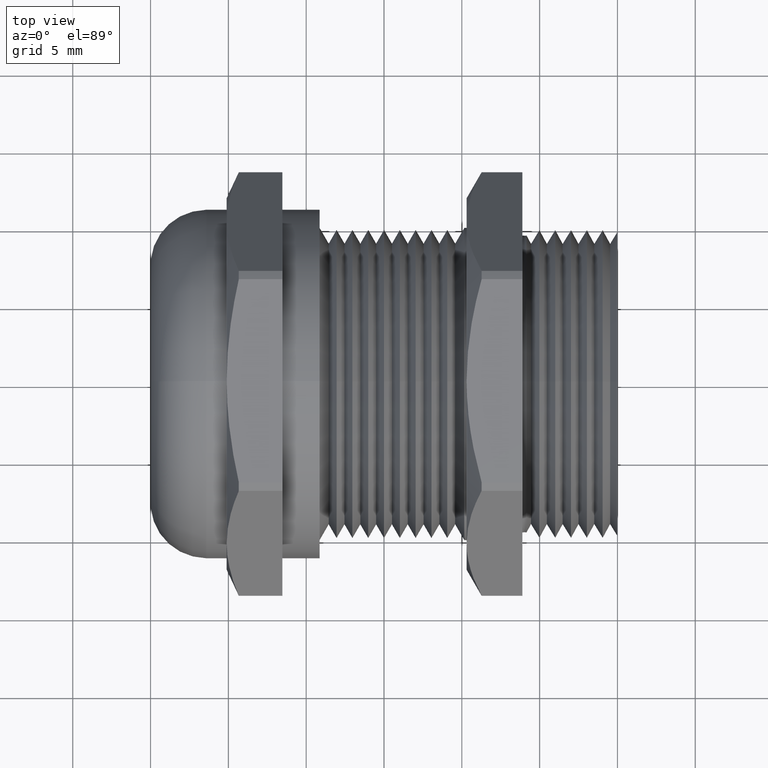
[diagram: clean part render]
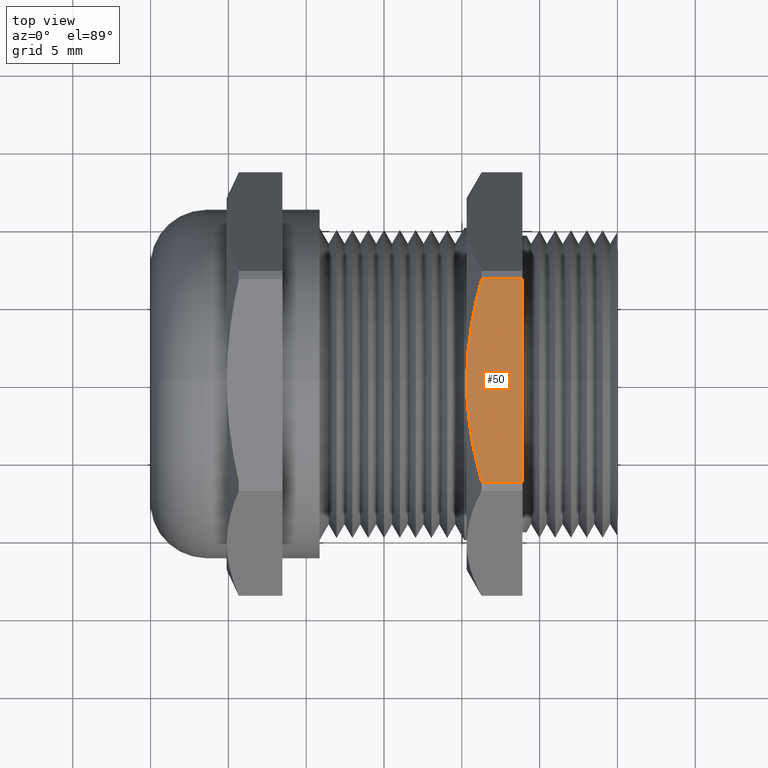
[diagram: same view with one face highlighted and labeled with its STEP entity id]
A machine part, top view. The second image highlights one B-rep face of the part: STEP entity #50.
In plain terms, the highlighted planar face has unit normal (0, 0, 1).
Its self-contained STEP definition (entity closure, byte-faithful):
#26 = EDGE_CURVE ( 'NONE', #40, #3093, #531, .T. ) ;
#27 = ORIENTED_EDGE ( 'NONE', *, *, #28, .T. ) ;
#28 = EDGE_CURVE ( 'NONE', #3093, #3097, #520, .T. ) ;
#29 = ORIENTED_EDGE ( 'NONE', *, *, #3137, .T. ) ;
#30 = ORIENTED_EDGE ( 'NONE', *, *, #31, .F. ) ;
#31 = EDGE_CURVE ( 'NONE', #44, #3141, #564, .T. ) ;
#40 = VERTEX_POINT ( 'NONE', #601 ) ;
#43 = EDGE_CURVE ( 'NONE', #40, #44, #589, .T. ) ;
#44 = VERTEX_POINT ( 'NONE', #585 ) ;
#50 = ADVANCED_FACE ( 'NONE', ( #574 ), #573, .T. ) ;
#51 = EDGE_LOOP ( 'NONE', ( #52, #53, #27, #29, #30 ) ) ;
#52 = ORIENTED_EDGE ( 'NONE', *, *, #43, .F. ) ;
#53 = ORIENTED_EDGE ( 'NONE', *, *, #26, .T. ) ;
#515 = CARTESIAN_POINT ( 'NONE',  ( 0.2125286380057564400, -0.08657185673703334000, 0.4699999999999999700 ) ) ;
#516 = CARTESIAN_POINT ( 'NONE',  ( 0.2089999999999998000, -0.04341946272548115300, 0.4699999999999997500 ) ) ;
#517 = CARTESIAN_POINT ( 'NONE',  ( 0.2089999999999999400, 0.0000000000000000000, 0.4699999999999999200 ) ) ;
#520 = B_SPLINE_CURVE_WITH_KNOTS ( 'NONE', 3,
 ( #517, #516, #515, #567, #566, #565 ),
 .UNSPECIFIED., .F., .F.,
 ( 4, 2, 4 ),
 ( 0.03799151003274251600, 0.04129634848707602200, 0.04460118694140952800 ),
 .UNSPECIFIED. ) ;
#523 = CARTESIAN_POINT ( 'NONE',  ( 0.2089999999999999400, 0.0000000000000000000, 0.4699999999999999200 ) ) ;
#524 = CARTESIAN_POINT ( 'NONE',  ( 0.2089999999999998500, 0.02171485112955175200, 0.4699999999999997000 ) ) ;
#525 = CARTESIAN_POINT ( 'NONE',  ( 0.2098730179914701500, 0.04349577755269813700, 0.4699999999999999700 ) ) ;
#526 = CARTESIAN_POINT ( 'NONE',  ( 0.2133466631367554600, 0.08718838633269833400, 0.4699999999999999200 ) ) ;
#527 = CARTESIAN_POINT ( 'NONE',  ( 0.2159370576833421200, 0.1089387947949669200, 0.4699999999999999200 ) ) ;
#528 = CARTESIAN_POINT ( 'NONE',  ( 0.2258913184282765900, 0.1734147641535644100, 0.4699999999999999700 ) ) ;
#529 = CARTESIAN_POINT ( 'NONE',  ( 0.2354436818956041600, 0.2156069817545528100, 0.4699999999999998600 ) ) ;
#530 = CARTESIAN_POINT ( 'NONE',  ( 0.2469896477126771200, 0.2572579250479953800, 0.4699999999999999200 ) ) ;
#531 = B_SPLINE_CURVE_WITH_KNOTS ( 'NONE', 3,
 ( #530, #529, #528, #527, #526, #525, #524, #523 ),
 .UNSPECIFIED., .F., .F.,
 ( 4, 2, 2, 4 ),
 ( 0.03138027437588538500, 0.03468589220431395100, 0.03633870111852823700, 0.03799151003274251600 ),
 .UNSPECIFIED. ) ;
#561 = DIRECTION ( 'NONE',  ( 0.0000000000000000000, -1.000000000000000000, 0.0000000000000000000 ) ) ;
#562 = VECTOR ( 'NONE', #561, 39.37007874015748100 ) ;
#563 = CARTESIAN_POINT ( 'NONE',  ( 0.3499999999999999800, 0.2572579250479953800, 0.4699999999999999200 ) ) ;
#564 = LINE ( 'NONE', #563, #562 ) ;
#565 = CARTESIAN_POINT ( 'NONE',  ( 0.2469896477126770600, -0.2572579250479953800, 0.4699999999999999200 ) ) ;
#566 = CARTESIAN_POINT ( 'NONE',  ( 0.2353585123327312200, -0.2152997408801483300, 0.4699999999999999200 ) ) ;
#567 = CARTESIAN_POINT ( 'NONE',  ( 0.2256930963075211000, -0.1724144161843168500, 0.4699999999999999200 ) ) ;
#569 = DIRECTION ( 'NONE',  ( 1.000000000000000000, 0.0000000000000000000, 0.0000000000000000000 ) ) ;
#570 = DIRECTION ( 'NONE',  ( 0.0000000000000000000, 0.0000000000000000000, 1.000000000000000000 ) ) ;
#571 = CARTESIAN_POINT ( 'NONE',  ( -1.928625965973398900, 0.2572579250479953800, 0.4699999999999999200 ) ) ;
#572 = AXIS2_PLACEMENT_3D ( 'NONE', #571, #570, #569 ) ;
#573 = PLANE ( 'NONE',  #572 ) ;
#574 = FACE_OUTER_BOUND ( 'NONE', #51, .T. ) ;
#585 = CARTESIAN_POINT ( 'NONE',  ( 0.3499999999999999800, 0.2572579250479953800, 0.4699999999999999200 ) ) ;
#586 = DIRECTION ( 'NONE',  ( 1.000000000000000000, 0.0000000000000000000, 0.0000000000000000000 ) ) ;
#587 = VECTOR ( 'NONE', #586, 39.37007874015748100 ) ;
#588 = CARTESIAN_POINT ( 'NONE',  ( -1.928625965973398900, 0.2572579250479953800, 0.4699999999999999200 ) ) ;
#589 = LINE ( 'NONE', #588, #587 ) ;
#601 = CARTESIAN_POINT ( 'NONE',  ( 0.2469896477126771200, 0.2572579250479953800, 0.4699999999999999200 ) ) ;
#1699 = CARTESIAN_POINT ( 'NONE',  ( 0.2469896477126770600, -0.2572579250479953800, 0.4699999999999999200 ) ) ;
#1701 = CARTESIAN_POINT ( 'NONE',  ( 0.2089999999999999400, 0.0000000000000000000, 0.4699999999999999200 ) ) ;
#1747 = DIRECTION ( 'NONE',  ( 1.000000000000000000, 0.0000000000000000000, 0.0000000000000000000 ) ) ;
#1748 = VECTOR ( 'NONE', #1747, 39.37007874015748100 ) ;
#1749 = CARTESIAN_POINT ( 'NONE',  ( -1.928625965973398900, -0.2572579250479953800, 0.4699999999999999200 ) ) ;
#1750 = LINE ( 'NONE', #1749, #1748 ) ;
#1798 = CARTESIAN_POINT ( 'NONE',  ( 0.3499999999999998100, -0.2572579250479953800, 0.4699999999999999200 ) ) ;
#3093 = VERTEX_POINT ( 'NONE', #1701 ) ;
#3097 = VERTEX_POINT ( 'NONE', #1699 ) ;
#3137 = EDGE_CURVE ( 'NONE', #3097, #3141, #1750, .T. ) ;
#3141 = VERTEX_POINT ( 'NONE', #1798 ) ;